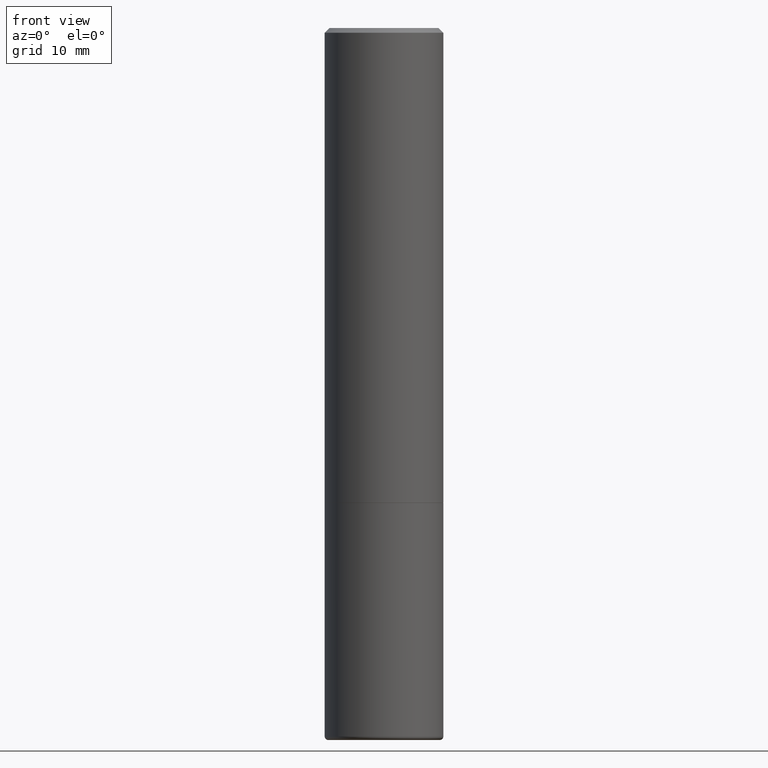
[diagram: clean part render]
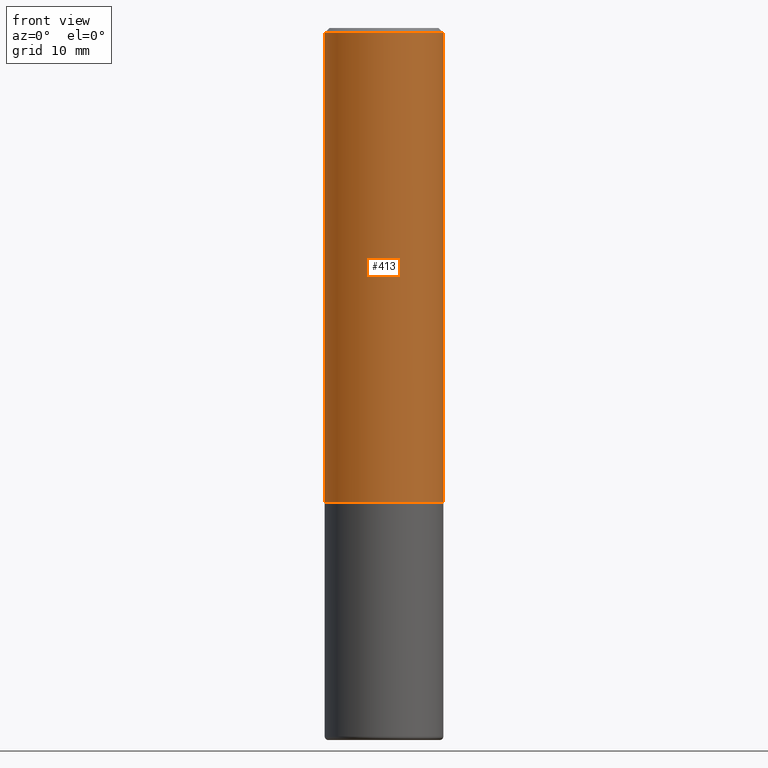
[diagram: same view with one face highlighted and labeled with its STEP entity id]
A machine part, front view. The second image highlights one B-rep face of the part: STEP entity #413.
In plain terms, the highlighted cylindrical surface (partial cylindrical patch) has radius 6.35 mm, axis along (-0, 0, 1).
Its self-contained STEP definition (entity closure, byte-faithful):
#8 = DIRECTION ( 'NONE',  ( -2.445468806185136597E-29, 3.491481338843145583E-15, 1.000000000000000000 ) ) ;
#36 = CIRCLE ( 'NONE', #180, 0.2500000000000000000 ) ;
#58 = CARTESIAN_POINT ( 'NONE',  ( -0.2499999999999996669, 1.776356839400248098E-15, -1.229733772563724764E-29 ) ) ;
#69 = DIRECTION ( 'NONE',  ( -2.445468806185136597E-29, 3.491481338843145583E-15, 1.000000000000000000 ) ) ;
#77 = VERTEX_POINT ( 'NONE', #106 ) ;
#80 = EDGE_CURVE ( 'NONE', #431, #77, #188, .T. ) ;
#95 = ORIENTED_EDGE ( 'NONE', *, *, #145, .T. ) ;
#106 = CARTESIAN_POINT ( 'NONE',  ( 0.2499999999999993061, -1.784954126219741456E-15, -0.02000000000000011838 ) ) ;
#114 = CARTESIAN_POINT ( 'NONE',  ( 4.890937612370302936E-31, -6.982962677686332285E-17, -0.02000000000000011838 ) ) ;
#116 = DIRECTION ( 'NONE',  ( 1.000000000000000000, -6.982962677686267499E-15, 0.000000000000000000 ) ) ;
#128 = VERTEX_POINT ( 'NONE', #265 ) ;
#140 = DIRECTION ( 'NONE',  ( -2.445468806185136877E-29, 3.491481338843145188E-15, 1.000000000000000000 ) ) ;
#145 = EDGE_CURVE ( 'NONE', #348, #431, #36, .T. ) ;
#154 = VECTOR ( 'NONE', #140, 39.37007874015748143 ) ;
#168 = ORIENTED_EDGE ( 'NONE', *, *, #206, .F. ) ;
#180 = AXIS2_PLACEMENT_3D ( 'NONE', #424, #270, #416 ) ;
#188 = LINE ( 'NONE', #259, #219 ) ;
#196 = AXIS2_PLACEMENT_3D ( 'NONE', #223, #69, #367 ) ;
#204 = EDGE_LOOP ( 'NONE', ( #376, #95, #396, #168 ) ) ;
#206 = EDGE_CURVE ( 'NONE', #128, #77, #282, .T. ) ;
#219 = VECTOR ( 'NONE', #336, 39.37007874015748143 ) ;
#223 = CARTESIAN_POINT ( 'NONE',  ( 0.000000000000000000, 0.000000000000000000, 0.000000000000000000 ) ) ;
#256 = CYLINDRICAL_SURFACE ( 'NONE', #196, 0.2499999999999996669 ) ;
#259 = CARTESIAN_POINT ( 'NONE',  ( 0.2499999999999996669, -1.745740669421564311E-15, 1.219044193948982267E-29 ) ) ;
#265 = CARTESIAN_POINT ( 'NONE',  ( -0.2499999999999993061, 1.675911042644698449E-15, -0.02000000000000011838 ) ) ;
#270 = DIRECTION ( 'NONE',  ( -2.445468806185136597E-29, 3.491481338843145583E-15, 1.000000000000000000 ) ) ;
#282 = CIRCLE ( 'NONE', #301, 0.2499999999999993061 ) ;
#301 = AXIS2_PLACEMENT_3D ( 'NONE', #114, #8, #116 ) ;
#306 = EDGE_CURVE ( 'NONE', #348, #128, #327, .T. ) ;
#327 = LINE ( 'NONE', #58, #154 ) ;
#332 = FACE_OUTER_BOUND ( 'NONE', #204, .T. ) ;
#336 = DIRECTION ( 'NONE',  ( -2.445468806185136877E-29, 3.491481338843145188E-15, 1.000000000000000000 ) ) ;
#348 = VERTEX_POINT ( 'NONE', #442 ) ;
#367 = DIRECTION ( 'NONE',  ( 1.000000000000000000, -6.982962677686266711E-15, 4.876176775795935793E-29 ) ) ;
#376 = ORIENTED_EDGE ( 'NONE', *, *, #306, .F. ) ;
#396 = ORIENTED_EDGE ( 'NONE', *, *, #80, .T. ) ;
#403 = CARTESIAN_POINT ( 'NONE',  ( 0.2500000000000000000, -8.725211865769015625E-15, -1.999000000000000110 ) ) ;
#413 = ADVANCED_FACE ( 'NONE', ( #332 ), #256, .T. ) ;
#416 = DIRECTION ( 'NONE',  ( 1.000000000000000000, -6.982962677686266711E-15, 0.000000000000000000 ) ) ;
#424 = CARTESIAN_POINT ( 'NONE',  ( 4.888492143564088712E-29, -6.979471196347448158E-15, -1.999000000000000110 ) ) ;
#431 = VERTEX_POINT ( 'NONE', #403 ) ;
#442 = CARTESIAN_POINT ( 'NONE',  ( -0.2500000000000000000, -1.748293572161900530E-15, -1.999000000000000110 ) ) ;